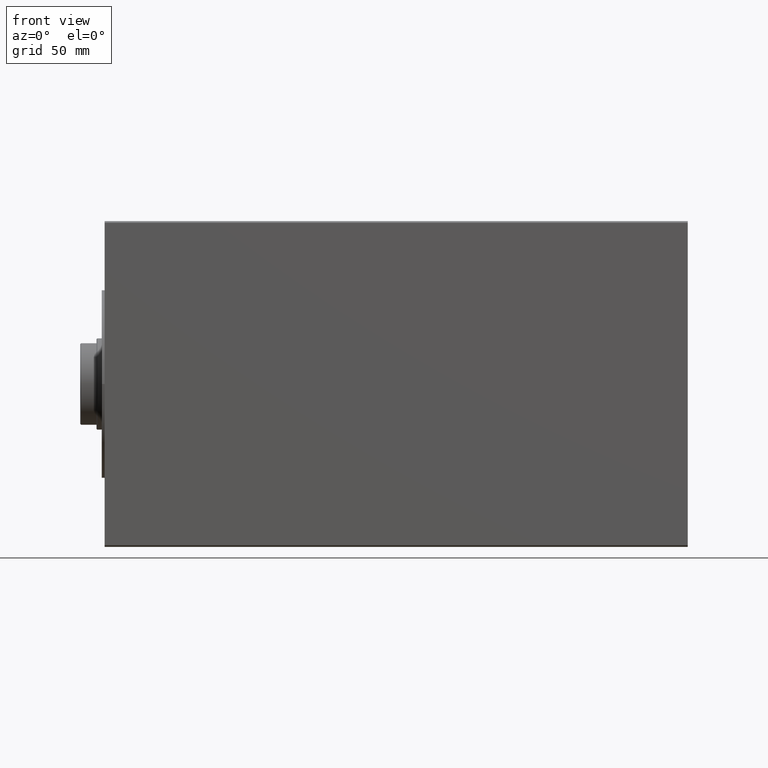
[diagram: clean part render]
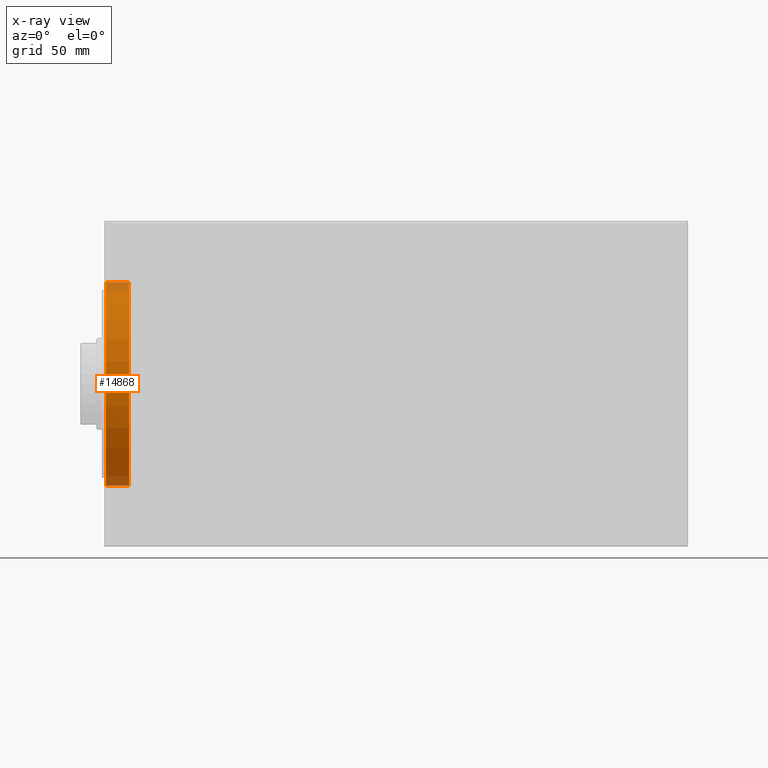
[diagram: x-ray — body ghosted, one internal face saturated and labeled with its STEP entity id]
A machine part, front view, then the same camera in x-ray: the body is ghosted and one INTERNAL B-rep face — a face not visible from any outside direction — is saturated and labeled: STEP entity #14868.
In plain terms, the highlighted cylindrical surface (partial cylindrical patch) has radius 62.5 mm, axis along (-1, -0, -0).
Its self-contained STEP definition (entity closure, byte-faithful):
#1323 = CARTESIAN_POINT ( 'NONE',  ( 0.6999999999999715339, 7.654042494670957804E-15, -62.50000000000000000 ) ) ;
#2397 = DIRECTION ( 'NONE',  ( 0.000000000000000000, 0.000000000000000000, 1.000000000000000000 ) ) ;
#2979 = AXIS2_PLACEMENT_3D ( 'NONE', #29725, #32855, #2397 ) ;
#5961 = CARTESIAN_POINT ( 'NONE',  ( 15.00000000000000000, 0.000000000000000000, 62.50000000000000000 ) ) ;
#6562 = EDGE_CURVE ( 'NONE', #38353, #12664, #19530, .T. ) ;
#6900 = CYLINDRICAL_SURFACE ( 'NONE', #29416, 62.50000000000000000 ) ;
#7022 = ORIENTED_EDGE ( 'NONE', *, *, #6562, .F. ) ;
#8855 = EDGE_CURVE ( 'NONE', #36156, #38353, #35687, .T. ) ;
#10521 = ORIENTED_EDGE ( 'NONE', *, *, #37894, .T. ) ;
#11432 = DIRECTION ( 'NONE',  ( -1.000000000000000000, -0.000000000000000000, -0.000000000000000000 ) ) ;
#12322 = DIRECTION ( 'NONE',  ( 0.000000000000000000, 0.000000000000000000, -1.000000000000000000 ) ) ;
#12664 = VERTEX_POINT ( 'NONE', #33844 ) ;
#14868 = ADVANCED_FACE ( 'NONE', ( #17353 ), #6900, .F. ) ;
#17353 = FACE_OUTER_BOUND ( 'NONE', #33180, .T. ) ;
#18324 = CARTESIAN_POINT ( 'NONE',  ( 15.00000000000000000, 7.654042494670957804E-15, -62.50000000000000000 ) ) ;
#19530 = LINE ( 'NONE', #5961, #33494 ) ;
#23203 = DIRECTION ( 'NONE',  ( -1.000000000000000000, 0.000000000000000000, 0.000000000000000000 ) ) ;
#23357 = DIRECTION ( 'NONE',  ( 0.000000000000000000, 0.000000000000000000, 1.000000000000000000 ) ) ;
#23576 = DIRECTION ( 'NONE',  ( -1.000000000000000000, -0.000000000000000000, -0.000000000000000000 ) ) ;
#26189 = DIRECTION ( 'NONE',  ( -1.000000000000000000, -0.000000000000000000, -0.000000000000000000 ) ) ;
#27057 = ORIENTED_EDGE ( 'NONE', *, *, #34980, .T. ) ;
#27119 = CARTESIAN_POINT ( 'NONE',  ( 15.00000000000000000, 0.000000000000000000, 0.000000000000000000 ) ) ;
#27225 = VECTOR ( 'NONE', #11432, 1000.000000000000000 ) ;
#27357 = CARTESIAN_POINT ( 'NONE',  ( 15.00000000000000000, 0.000000000000000000, 62.50000000000000000 ) ) ;
#29416 = AXIS2_PLACEMENT_3D ( 'NONE', #27119, #23576, #23357 ) ;
#29612 = ORIENTED_EDGE ( 'NONE', *, *, #8855, .F. ) ;
#29725 = CARTESIAN_POINT ( 'NONE',  ( 15.00000000000000000, 0.000000000000000000, 0.000000000000000000 ) ) ;
#31557 = CARTESIAN_POINT ( 'NONE',  ( 15.00000000000000000, 7.654042494670957804E-15, -62.50000000000000000 ) ) ;
#31986 = AXIS2_PLACEMENT_3D ( 'NONE', #40108, #23203, #12322 ) ;
#32100 = LINE ( 'NONE', #18324, #27225 ) ;
#32855 = DIRECTION ( 'NONE',  ( -1.000000000000000000, 0.000000000000000000, 0.000000000000000000 ) ) ;
#33180 = EDGE_LOOP ( 'NONE', ( #29612, #27057, #10521, #7022 ) ) ;
#33494 = VECTOR ( 'NONE', #26189, 1000.000000000000000 ) ;
#33844 = CARTESIAN_POINT ( 'NONE',  ( 0.6999999999999715339, 0.000000000000000000, 62.50000000000000000 ) ) ;
#34980 = EDGE_CURVE ( 'NONE', #36156, #41484, #32100, .T. ) ;
#35687 = CIRCLE ( 'NONE', #2979, 62.50000000000000000 ) ;
#36156 = VERTEX_POINT ( 'NONE', #31557 ) ;
#36244 = CIRCLE ( 'NONE', #31986, 62.50000000000000000 ) ;
#37894 = EDGE_CURVE ( 'NONE', #41484, #12664, #36244, .T. ) ;
#38353 = VERTEX_POINT ( 'NONE', #27357 ) ;
#40108 = CARTESIAN_POINT ( 'NONE',  ( 0.6999999999999715339, 0.000000000000000000, 0.000000000000000000 ) ) ;
#41484 = VERTEX_POINT ( 'NONE', #1323 ) ;